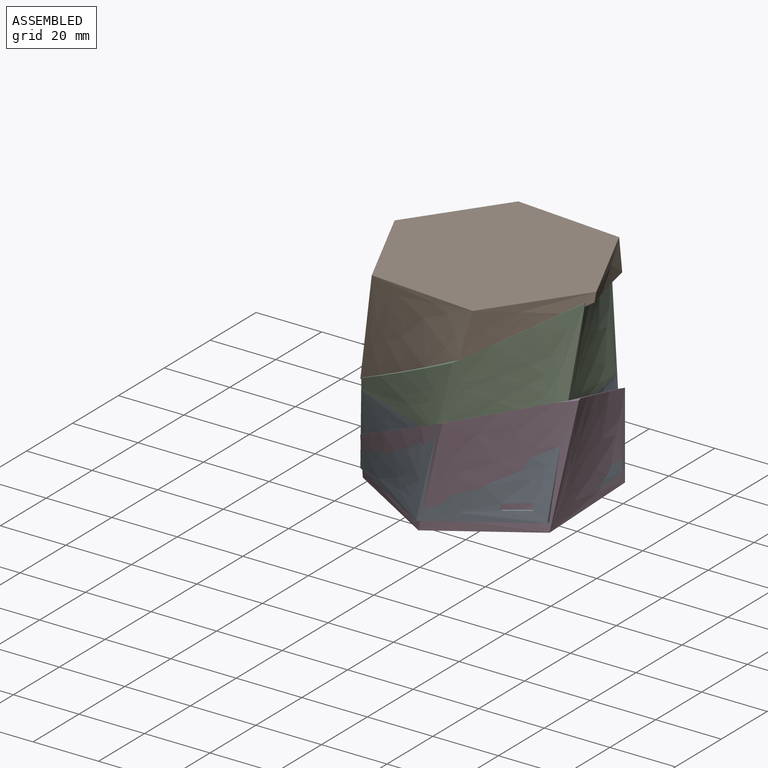
[diagram: assembled view]
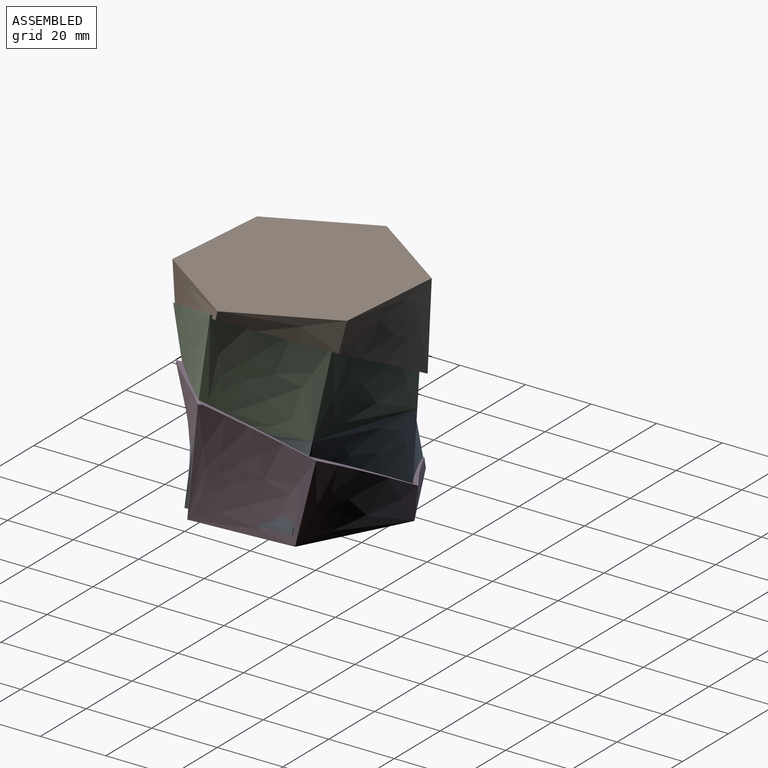
[diagram: assembled view, second angle]
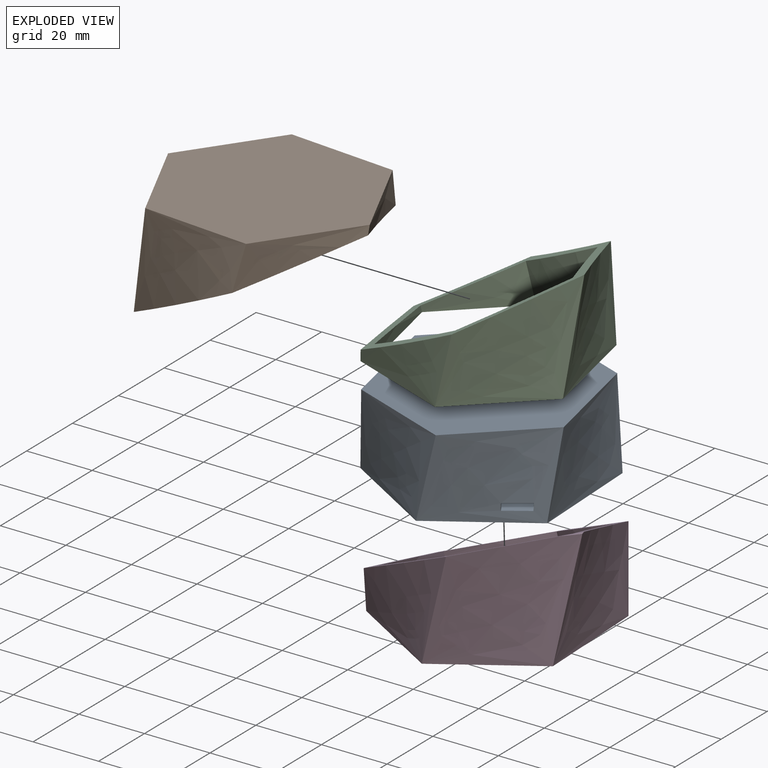
[diagram: exploded view]
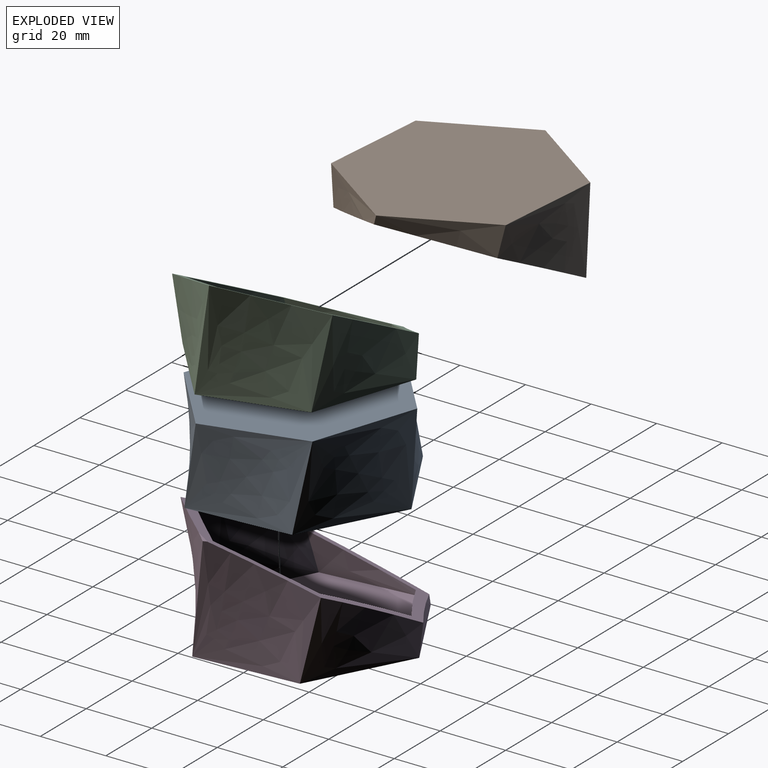
[diagram: exploded view, second angle]
ASSEMBLY  parts=3 mates=2
PART A: 30 faces, bbox 69.6x69.8x64 mm
  f0: offset ~64x36.78mm, area 614.7mm2, adj f2,f3,f4,f5,f23,f24,f25,f26
  f1: plane 0.37x0.11mm, normal (1,0,0), area 0mm2, adj f18,f24,f27
  f2: plane 58.87x55.94mm, normal (0,0,-1), area 2201.9mm2, adj f0,f4,f5,f6,f7,f8,f9,f10
  f3: plane 60.97x53.25mm, normal (0,0,1), area 2401.7mm2, adj f0,f4,f5,f6,f7,f8,f28,f29
  f4: offset ~64x47.41mm, area 633.8mm2, adj f0,f2,f3,f8
  f5: offset ~64x46.41mm, area 633.8mm2, adj f0,f2,f3,f6
  f6: offset ~64x47.41mm, area 633.8mm2, adj f2,f3,f5,f7
  f7: offset ~64x36.78mm, area 633.8mm2, adj f2,f3,f6,f8
  f8: offset ~64x46.41mm, area 633.8mm2, adj f2,f3,f4,f7
  f9: cylinder r=1.5mm len=3mm, axis (0,0,1), area 18.8mm2, adj f2,f15
  f10: cylinder r=1.5mm len=3mm, axis (0,0,1), area 18.8mm2, adj f2,f15
  f11: plane 23.55x8.39mm, normal (0.94,-0.34,0), area 50mm2, adj f2,f12,f14,f15
  f12: plane 3.77x2mm, normal (0.34,0.94,0), area 8mm2, adj f2,f11,f13,f15
  f13: plane 23.55x8.39mm, normal (-0.94,0.34,0), area 50mm2, adj f2,f12,f14,f15
  f14: plane 3.77x2mm, normal (-0.34,-0.94,0), area 8mm2, adj f2,f11,f13,f15
  f15: plane 63.25x60.57mm, normal (0,0,1), area 2571.4mm2, adj f9,f10,f11,f12,f13,f14,f17,f18
  f16: plane 65.82x57mm, normal (0,0,-1), area 2799.6mm2, adj f17,f18,f19,f20,f21,f22,f28,f29
  f17: bspline ~60x43.41mm, area 813.2mm2, adj f15,f16,f18,f22
  f18: bspline ~60x32.78mm, area 796.7mm2, adj f1,f15,f16,f17,f19,f23,f24,f25
  f19: bspline ~60x42.41mm, area 813.2mm2, adj f15,f16,f18,f20
  f20: bspline ~60x43.41mm, area 813.2mm2, adj f15,f16,f19,f21
  f21: bspline ~60x32.78mm, area 813.2mm2, adj f15,f16,f20,f22
  f22: bspline ~60x42.41mm, area 813.2mm2, adj f15,f16,f17,f21
  f23: plane 8.06x6.78mm, normal (0,0,-1), area 17.9mm2, adj f0,f18,f25,f26
  f24: plane 8.04x6.62mm, normal (0,0,1), area 17.6mm2, adj f0,f1,f18,f25,f27
  f25: plane 2.68x2mm, normal (-1,0,0), area 4.7mm2, adj f0,f18,f23,f24
  f26: plane 1.83x1.77mm, normal (0.85,0.53,-0.04), area 3.4mm2, adj f0,f18,f23,f27
  f27: plane 1.69x1.06mm, normal (0.84,0.53,0.12), area 0.6mm2, adj f0,f1,f24,f26
  f28: cylinder r=1.5mm len=3mm, axis (0,0,-1), area 18.8mm2, adj f3,f16
  f29: cylinder r=1.5mm len=3mm, axis (0,0,-1), area 18.8mm2, adj f3,f16
PART B: 14 faces, bbox 71.6x71.8x66 mm
  f0: offset ~66x49.41mm, area 797.3mm2, adj f1,f5,f6,f7
  f1: offset ~66x38.78mm, area 737.9mm2, adj f0,f2,f6,f7
  f2: offset ~66x48.41mm, area 364.6mm2, adj f1,f3,f6,f7
  f3: offset ~66x49.41mm, area 99.6mm2, adj f2,f4,f6,f7
  f4: offset ~66x38.78mm, area 202.6mm2, adj f3,f5,f6,f7
  f5: offset ~66x48.41mm, area 529.1mm2, adj f0,f4,f6,f7
  f6: plane 62.9x61.57mm, normal (-0.45,0,0.89), area 622mm2, adj f0,f1,f2,f3,f4,f5,f8,f9
  f7: plane 63.25x60.57mm, normal (0,0,-1), area 548.5mm2, adj f0,f1,f2,f3,f4,f5,f8,f9
  f8: bspline ~60x43.41mm, area 939.7mm2, adj f6,f7,f9,f13
  f9: bspline ~60x32.78mm, area 869.2mm2, adj f6,f7,f8,f10
  f10: bspline ~60x42.41mm, area 396.1mm2, adj f6,f7,f9,f11
  f11: bspline ~60x43.41mm, area 62.9mm2, adj f6,f7,f10,f12
  f12: bspline ~60x32.78mm, area 195.5mm2, adj f6,f7,f11,f13
  f13: bspline ~60x42.41mm, area 602.8mm2, adj f6,f7,f8,f12
PART C: 16 faces, bbox 71.6x78.7x66 mm
  f0: offset ~66x51.15mm, area 123.4mm2, adj f1,f5,f6,f7
  f1: offset ~66x39.51mm, area 185mm2, adj f0,f2,f6,f7
  f2: offset ~66x51.41mm, area 583mm2, adj f1,f3,f6,f7
  f3: offset ~66x51.15mm, area 877.6mm2, adj f2,f4,f6,f7
  f4: offset ~66x39.51mm, area 755.5mm2, adj f3,f5,f6,f7
  f5: offset ~66x51.41mm, area 399.2mm2, adj f0,f4,f6,f7
  f6: plane 58.51x53.92mm, normal (0,0,-1), area 2253.2mm2, adj f0,f1,f2,f3,f4,f5
  f7: plane 63.81x63.72mm, normal (0.45,0,-0.89), area 641.9mm2, adj f0,f1,f2,f3,f4,f5,f8,f9
  f8: plane 6.3x0.95mm, normal (0,0,-1), area 3mm2, adj f7,f12,f13
  f9: bspline ~60x45.15mm, area 192mm2, adj f7,f10,f14,f15
  f10: bspline ~60x33.51mm, area 265mm2, adj f7,f9,f11,f15
  f11: bspline ~60x45.41mm, area 766mm2, adj f7,f10,f12,f15
  f12: bspline ~60x45.15mm, area 1132.2mm2, adj f7,f8,f11,f13,f15
  f13: bspline ~60x33.51mm, area 976.5mm2, adj f7,f8,f12,f14,f15
  f14: bspline ~60x45.41mm, area 535.5mm2, adj f7,f9,f13,f15
  f15: plane 65.57x59.65mm, normal (0,0,1), area 2813.7mm2, adj f9,f10,f11,f12,f13,f14
PLACE A rot(axis=(1,0,0),2.3deg) t=(95.19,60.99,-3.27)mm fixed
PLACE B rot(axis=(1,0,0),2.3deg) t=(95.19,60.99,-3.27)mm
PLACE C rot(axis=(-0.3,-0.95,-0.02),179.3deg) t=(95.27,59.54,53.72)mm
MATE fastened B.f7 <-> A.f15  axis (0,-0.04,1) through (85.84,33.79,20.66)mm
MATE planar C.f6 <-> A.f16  axis (0,-0.04,1) through (95.27,61.82,-3.24)mm
